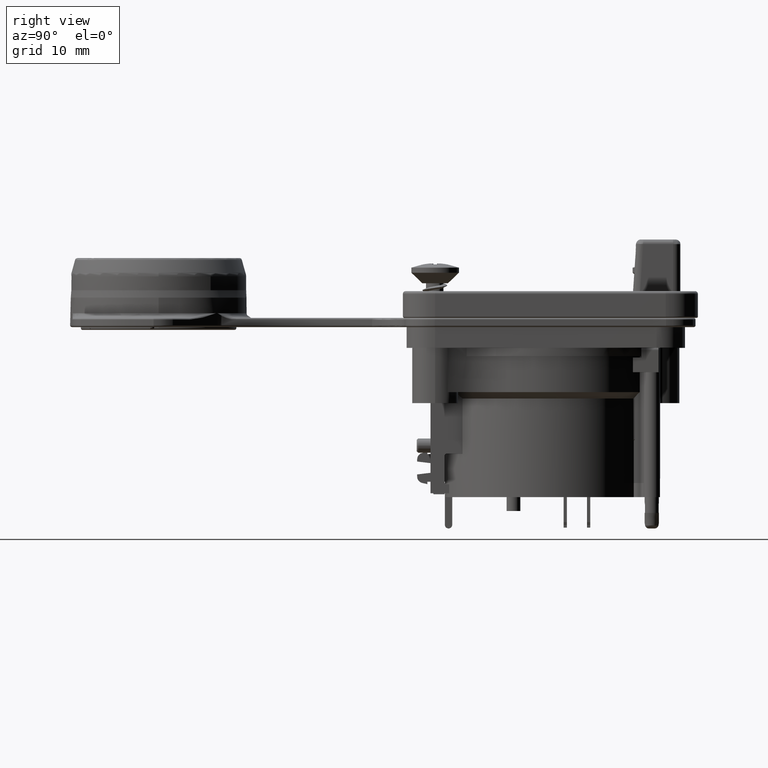
[diagram: clean part render]
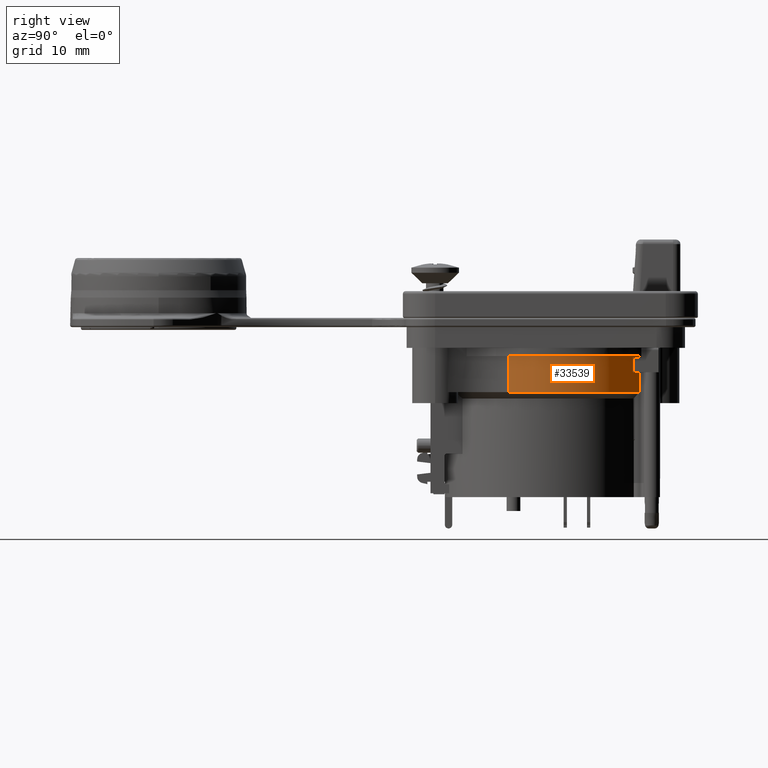
[diagram: same view with one face highlighted and labeled with its STEP entity id]
A machine part, right view. The second image highlights one B-rep face of the part: STEP entity #33539.
In plain terms, the highlighted cylindrical surface (partial cylindrical patch) has radius 11.6 mm, axis along (0, 0, -1).
Its self-contained STEP definition (entity closure, byte-faithful):
#855=CYLINDRICAL_SURFACE('',#35677,11.6);
#4535=FACE_OUTER_BOUND('',#6369,.T.);
#6369=EDGE_LOOP('',(#29956,#29957,#29958,#29959));
#10186=LINE('',#90901,#12510);
#10194=LINE('',#90934,#12518);
#12510=VECTOR('',#41659,10.);
#12518=VECTOR('',#41685,10.);
#13608=CIRCLE('',#35659,11.6);
#13619=CIRCLE('',#35678,11.6);
#16464=VERTEX_POINT('',#90888);
#16465=VERTEX_POINT('',#90890);
#16468=VERTEX_POINT('',#90900);
#16476=VERTEX_POINT('',#90932);
#21071=EDGE_CURVE('',#16465,#16464,#13608,.T.);
#21076=EDGE_CURVE('',#16465,#16468,#10186,.T.);
#21090=EDGE_CURVE('',#16464,#16476,#10194,.T.);
#21095=EDGE_CURVE('',#16468,#16476,#13619,.T.);
#29956=ORIENTED_EDGE('',*,*,#21071,.T.);
#29957=ORIENTED_EDGE('',*,*,#21090,.T.);
#29958=ORIENTED_EDGE('',*,*,#21095,.F.);
#29959=ORIENTED_EDGE('',*,*,#21076,.F.);
#33539=ADVANCED_FACE('',(#4535),#855,.T.);
#35659=AXIS2_PLACEMENT_3D('',#90891,#41646,#41647);
#35677=AXIS2_PLACEMENT_3D('',#90943,#41694,#41695);
#35678=AXIS2_PLACEMENT_3D('',#90944,#41696,#41697);
#41646=DIRECTION('center_axis',(5.72118872610954E-18,8.32667268468868E-17,
-1.));
#41647=DIRECTION('ref_axis',(0.526293103448287,-0.850303221952482,-6.77909439492675E-17));
#41659=DIRECTION('',(5.72118872610944E-18,8.32667268468867E-17,-1.));
#41685=DIRECTION('',(5.72118872610944E-18,8.32667268468867E-17,-1.));
#41694=DIRECTION('center_axis',(5.72118872610944E-18,8.32667268468867E-17,
-1.));
#41695=DIRECTION('ref_axis',(0.526293103448287,-0.850303221952482,-6.77909439492675E-17));
#41696=DIRECTION('center_axis',(5.72118872610934E-18,8.32667268468867E-17,
-1.));
#41697=DIRECTION('ref_axis',(0.526293103448287,-0.850303221952482,-6.77909439492675E-17));
#90888=CARTESIAN_POINT('',(10.8839381111525,-4.01246697090478,-1.15));
#90890=CARTESIAN_POINT('',(5.52809860841506,10.1980451938418,-1.15));
#90891=CARTESIAN_POINT('Origin',(6.57936703502585E-18,9.57567358739229E-17,
-1.15));
#90900=CARTESIAN_POINT('',(5.52809860841506,10.1980451938418,-5.05));
#90901=CARTESIAN_POINT('',(5.52809860841506,10.1980451938418,1.05));
#90932=CARTESIAN_POINT('',(10.8839381111525,-4.01246697090478,-5.05));
#90934=CARTESIAN_POINT('',(10.8839381111525,-4.01246697090478,-0.249999999999998));
#90943=CARTESIAN_POINT('Origin',(-6.00724816241493E-18,-8.74300631892279E-17,
1.05));
#90944=CARTESIAN_POINT('Origin',(2.88920030668527E-17,4.20496970576781E-16,
-5.05));